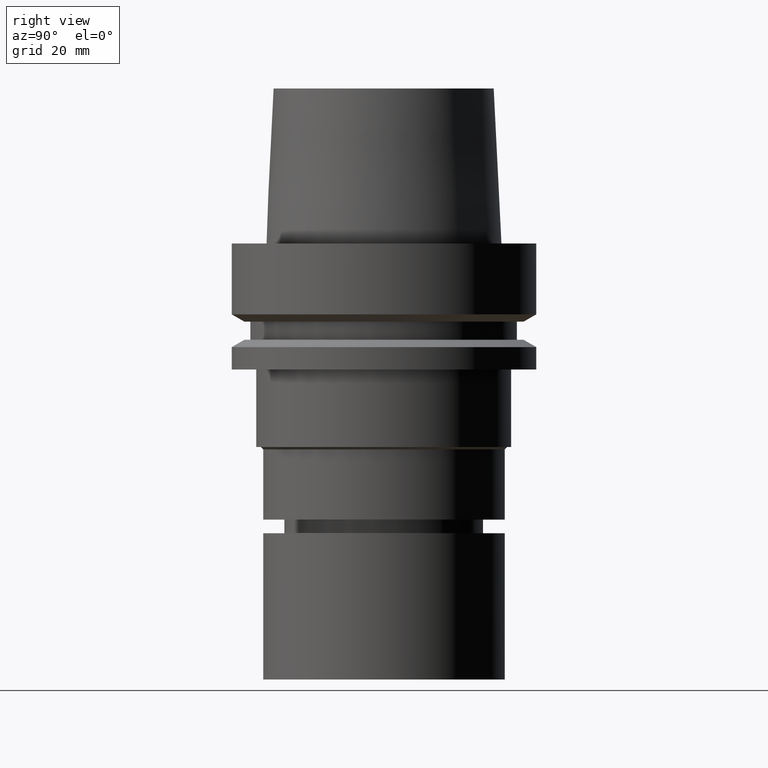
[diagram: clean part render]
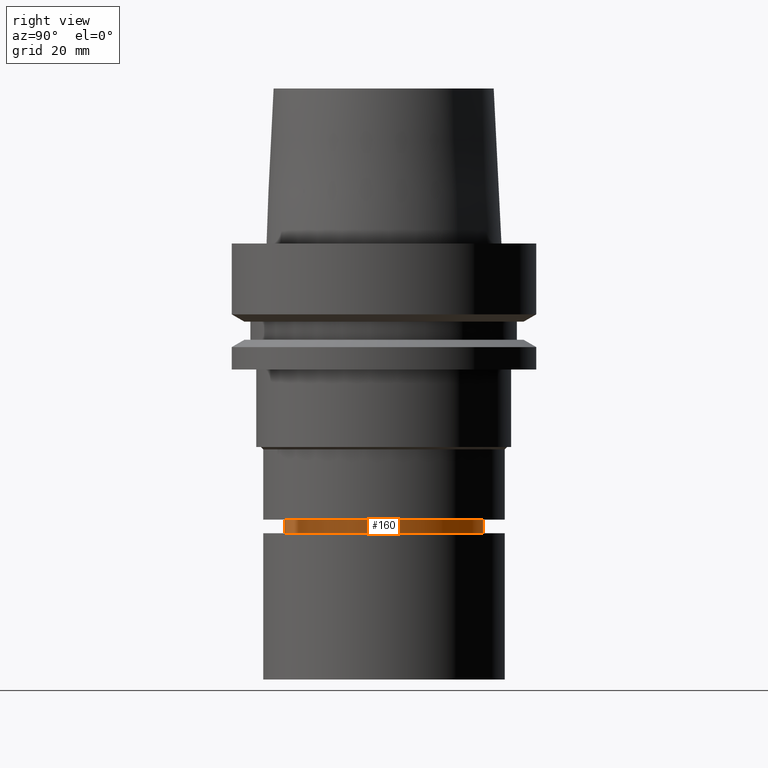
[diagram: same view with one face highlighted and labeled with its STEP entity id]
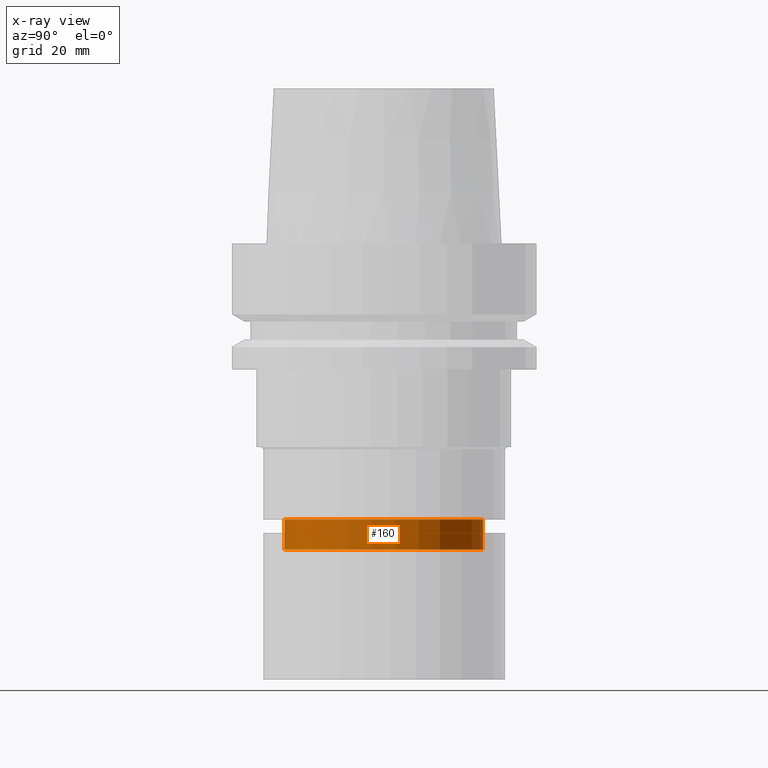
[diagram: x-ray of the same camera — body ghosted, the highlighted face saturated]
A machine part, right view. The second image highlights one B-rep face of the part: STEP entity #160.
The next image is the same camera in x-ray: the body ghosted, the highlighted face saturated — about 0% of this face is hidden behind the body in this view.
In plain terms, the highlighted cylindrical surface (bore or boss wall) has radius 20.5 mm, axis along (-0, -0, 1).
Its self-contained STEP definition (entity closure, byte-faithful):
#90=EDGE_CURVE('Unnamed[1]',#236,#236,#237,.T.);
#102=EDGE_CURVE('Unnamed[1]',#252,#252,#253,.T.);
#160=ADVANCED_FACE('Unnamed[1]',(#340,#341),#342,.T.);
#236=VERTEX_POINT('',#440);
#237=CIRCLE('',#441,20.4999999999911);
#252=VERTEX_POINT('',#460);
#253=CIRCLE('',#461,20.5000000000012);
#340=FACE_BOUND('',#570,.T.);
#341=FACE_BOUND('',#571,.T.);
#342=CYLINDRICAL_SURFACE('',#572,20.4999999999961);
#440=CARTESIAN_POINT('',(3.49025302591328E-015,20.4999999999911,-57.0001575694042));
#441=AXIS2_PLACEMENT_3D('',#670,#671,#672);
#460=CARTESIAN_POINT('',(3.87058698165691E-015,20.5000000000012,-63.211482434801));
#461=AXIS2_PLACEMENT_3D('',#685,#686,#687);
#570=EDGE_LOOP('',(#781));
#571=EDGE_LOOP('',(#782));
#572=AXIS2_PLACEMENT_3D('',#783,#784,#785);
#670=CARTESIAN_POINT('',(3.49025302591328E-015,6.98050605182656E-015,-57.0001575694042));
#671=DIRECTION('',(-6.12323399573677E-017,-1.22464679914735E-016,1.0));
#672=DIRECTION('',(-1.23259516440783E-032,1.0,1.22464679914735E-016));
#685=CARTESIAN_POINT('',(3.87058698165691E-015,7.74117396331382E-015,-63.211482434801));
#686=DIRECTION('',(-6.12323399573677E-017,-1.22464679914735E-016,1.0));
#687=DIRECTION('',(-1.23259516440783E-032,1.0,1.22464679914735E-016));
#781=ORIENTED_EDGE('',*,*,#90,.F.);
#782=ORIENTED_EDGE('',*,*,#102,.T.);
#783=CARTESIAN_POINT('',(3.6804200037851E-015,7.36084000757019E-015,-60.1058200021026));
#784=DIRECTION('',(-6.12323399573677E-017,-1.22464679914735E-016,1.0));
#785=DIRECTION('',(-1.23259516440783E-032,1.0,1.22464679914735E-016));